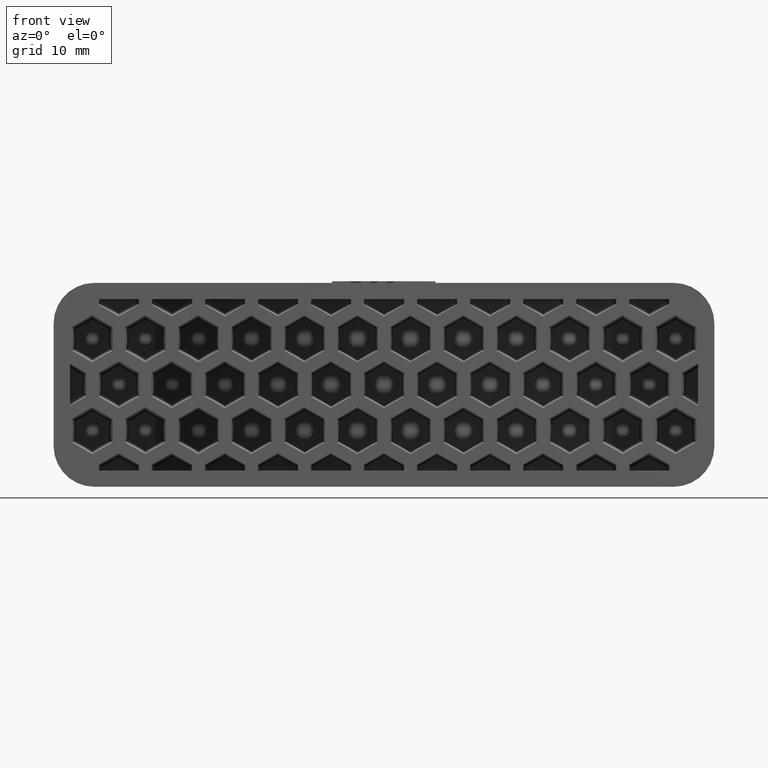
[diagram: clean part render]
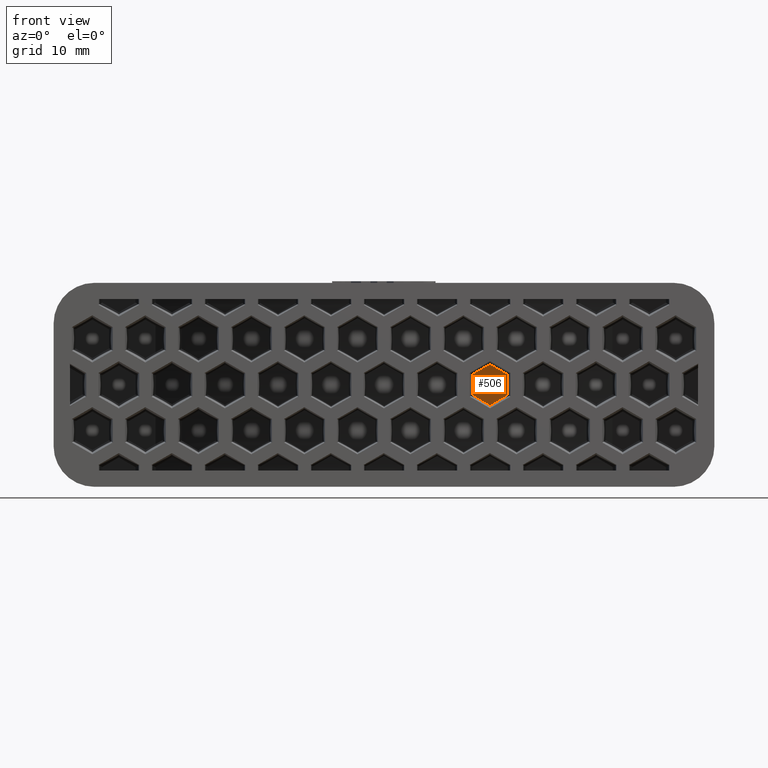
[diagram: same view with one face highlighted and labeled with its STEP entity id]
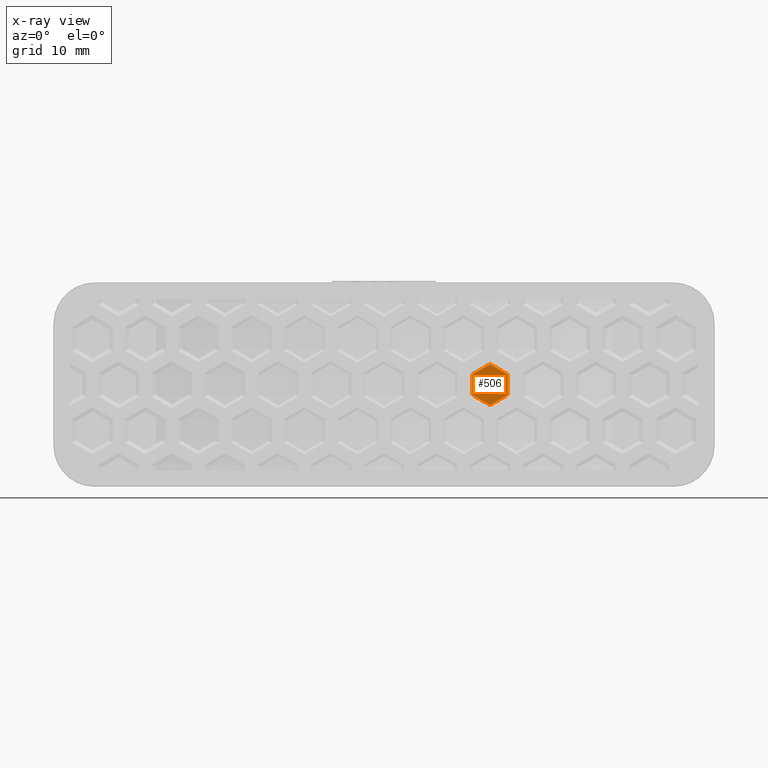
[diagram: x-ray of the same camera — body ghosted, the highlighted face saturated]
A machine part, front view. The second image highlights one B-rep face of the part: STEP entity #506.
The next image is the same camera in x-ray: the body ghosted, the highlighted face saturated — about 0% of this face is hidden behind the body in this view.
In plain terms, the highlighted cylindrical surface (partial cylindrical patch) has radius 48.05 mm, axis along (0, 0, -1).
Its self-contained STEP definition (entity closure, byte-faithful):
#506 = ADVANCED_FACE( '', ( #1462 ), #1463, .T. );
#1462 = FACE_OUTER_BOUND( '', #2446, .T. );
#1463 = CYLINDRICAL_SURFACE( '', #2447, 48.0500000000000 );
#2446 = EDGE_LOOP( '', ( #5985, #5986, #5987, #5988, #5989, #5990 ) );
#2447 = AXIS2_PLACEMENT_3D( '', #5991, #5992, #5993 );
#5985 = ORIENTED_EDGE( '', *, *, #7076, .F. );
#5986 = ORIENTED_EDGE( '', *, *, #7074, .F. );
#5987 = ORIENTED_EDGE( '', *, *, #7072, .F. );
#5988 = ORIENTED_EDGE( '', *, *, #7070, .F. );
#5989 = ORIENTED_EDGE( '', *, *, #7068, .F. );
#5990 = ORIENTED_EDGE( '', *, *, #7065, .F. );
#5991 = CARTESIAN_POINT( '', ( 0.000000000000000, 65.0500000000000, -10.5000000000000 ) );
#5992 = DIRECTION( '', ( 0.000000000000000, 0.000000000000000, -1.00000000000000 ) );
#5993 = DIRECTION( '', ( -1.00000000000000, 6.93889390390723E-017, 0.000000000000000 ) );
#7065 = EDGE_CURVE( '', #8856, #8857, #8858, .T. );
#7068 = EDGE_CURVE( '', #8857, #8861, #8862, .T. );
#7070 = EDGE_CURVE( '', #8861, #8864, #8865, .T. );
#7072 = EDGE_CURVE( '', #8864, #8867, #8868, .T. );
#7074 = EDGE_CURVE( '', #8867, #8870, #8871, .T. );
#7076 = EDGE_CURVE( '', #8870, #8856, #8873, .F. );
#8856 = VERTEX_POINT( '', #11488 );
#8857 = VERTEX_POINT( '', #11489 );
#8858 = ELLIPSE( '', #11490, 55.4918125409537, 48.0500000000000 );
#8861 = VERTEX_POINT( '', #11495 );
#8862 = ELLIPSE( '', #11496, 55.4918125409537, 48.0500000000000 );
#8864 = VERTEX_POINT( '', #11499 );
#8865 = LINE( '', #11500, #11501 );
#8867 = VERTEX_POINT( '', #11504 );
#8868 = ELLIPSE( '', #11505, 55.4918125409537, 48.0500000000000 );
#8870 = VERTEX_POINT( '', #11508 );
#8871 = ELLIPSE( '', #11509, 55.4918125409537, 48.0500000000000 );
#8873 = LINE( '', #11512, #11513 );
#11488 = CARTESIAN_POINT( '', ( 15.1604232048717, 19.4543415635963, -1.24732091889620 ) );
#11489 = CARTESIAN_POINT( '', ( 13.0000000000000, 18.7920006917722, -2.50799156503108 ) );
#11490 = AXIS2_PLACEMENT_3D( '', #13357, #13358, #13359 );
#11495 = CARTESIAN_POINT( '', ( 10.8182701217401, 18.2336830627070, -1.25962233251243 ) );
#11496 = AXIS2_PLACEMENT_3D( '', #13362, #13363, #13364 );
#11499 = CARTESIAN_POINT( '', ( 10.8182701217401, 18.2336830627070, 1.25962233251240 ) );
#11500 = CARTESIAN_POINT( '', ( 10.8182701217401, 18.2336830627070, -10.5000000000000 ) );
#11501 = VECTOR( '', #13366, 1000.00000000000 );
#11504 = CARTESIAN_POINT( '', ( 13.0000000000000, 18.7920006917722, 2.50799156503108 ) );
#11505 = AXIS2_PLACEMENT_3D( '', #13368, #13369, #13370 );
#11508 = CARTESIAN_POINT( '', ( 15.1604232048717, 19.4543415635963, 1.24732091889618 ) );
#11509 = AXIS2_PLACEMENT_3D( '', #13372, #13373, #13374 );
#11512 = CARTESIAN_POINT( '', ( 15.1604232048717, 19.4543415635963, -10.5000000000000 ) );
#11513 = VECTOR( '', #13376, 1000.00000000000 );
#13357 = CARTESIAN_POINT( '', ( 0.000000000000000, 65.0500000000000, -9.08119784021601 ) );
#13358 = DIRECTION( '', ( 0.499923847578195, 0.0174524064372835, -0.865893503920754 ) );
#13359 = DIRECTION( '', ( 0.865366346075250, 0.0302100515148758, 0.500228387706894 ) );
#13362 = CARTESIAN_POINT( '', ( 0.000000000000000, 65.0500000000000, 5.92990915871426 ) );
#13363 = DIRECTION( '', ( -0.499923847578196, 0.0174524064372835, -0.865893503920754 ) );
#13364 = DIRECTION( '', ( -0.865366346075250, 0.0302100515148758, 0.500228387706895 ) );
#13366 = DIRECTION( '', ( 0.000000000000000, 0.000000000000000, 1.00000000000000 ) );
#13368 = CARTESIAN_POINT( '', ( 0.000000000000000, 65.0500000000000, -5.92990915871426 ) );
#13369 = DIRECTION( '', ( -0.499923847578195, 0.0174524064372835, 0.865893503920754 ) );
#13370 = DIRECTION( '', ( 0.865366346075250, -0.0302100515148758, 0.500228387706894 ) );
#13372 = CARTESIAN_POINT( '', ( 0.000000000000000, 65.0500000000000, 9.08119784021602 ) );
#13373 = DIRECTION( '', ( 0.499923847578196, 0.0174524064372835, 0.865893503920754 ) );
#13374 = DIRECTION( '', ( -0.865366346075250, -0.0302100515148758, 0.500228387706894 ) );
#13376 = DIRECTION( '', ( 0.000000000000000, 0.000000000000000, 1.00000000000000 ) );